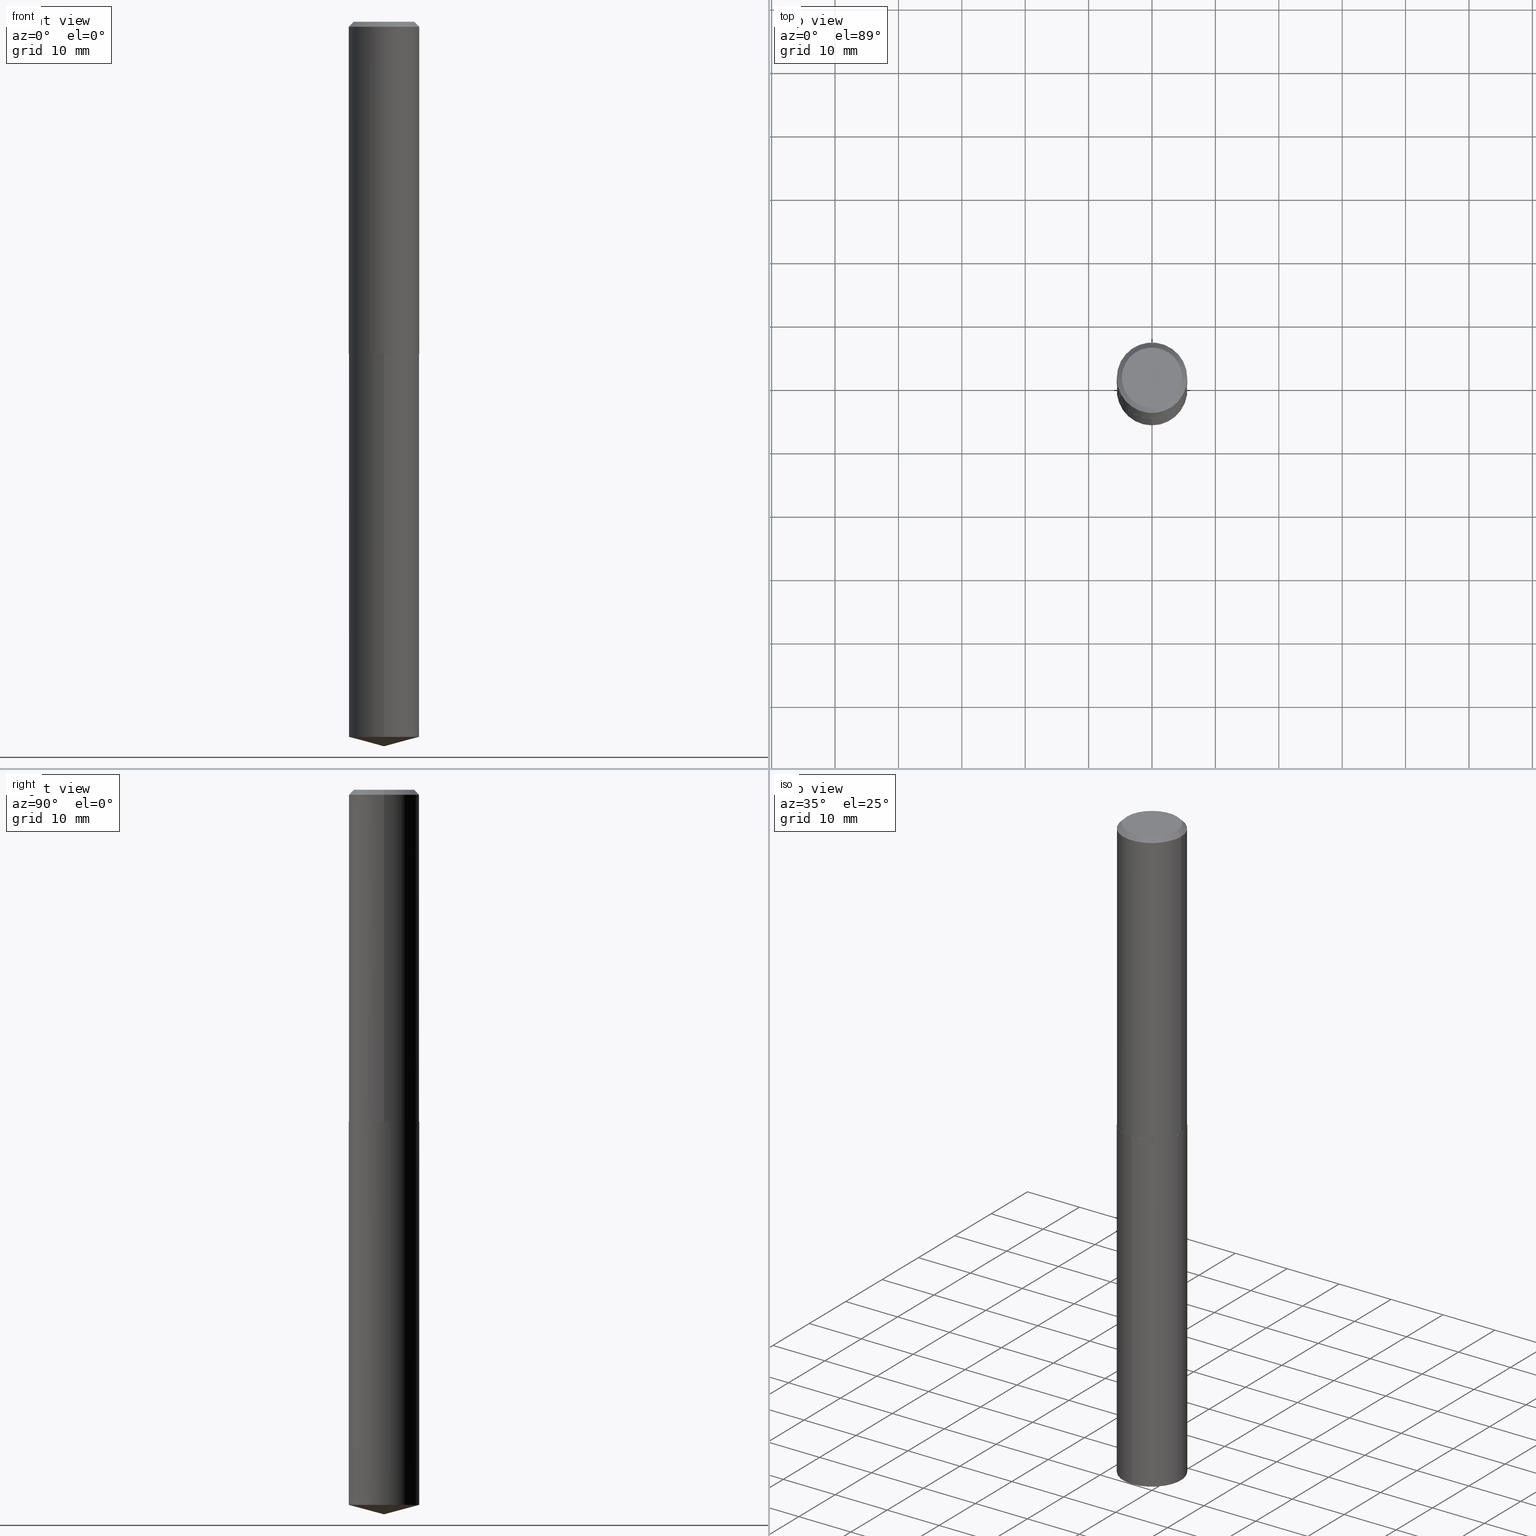
[diagram: canonical four-view strip — front | top / right | iso, engineering-drawing reading convention]
A machine part, canonical four-view strip (front | top / right | iso — engineering-drawing reading convention). The complete STEP part file that produces these views, byte-faithful:
ISO-10303-21;
HEADER;
FILE_DESCRIPTION (( 'STEP AP203' ),
    '1' );
FILE_NAME ('58094.STEP',
    '2024-04-23T01:51:55',
    ( '' ),
    ( '' ),
    'SwSTEP 2.0',
    'SolidWorks 2023',
    '' );
FILE_SCHEMA (( 'CONFIG_CONTROL_DESIGN' ));
ENDSEC;

DATA;
#1 = AXIS2_PLACEMENT_3D ( 'NONE', #376, #265, #388 ) ;
#2 = LOCAL_TIME ( 21, 51, 55.00000000000000000, #129 ) ;
#3 = ORIENTED_EDGE ( 'NONE', *, *, #111, .T. ) ;
#4 = PLANE ( 'NONE',  #88 ) ;
#5 = DIRECTION ( 'NONE',  ( -6.982962677686265133E-15, -1.000000000000000000, 3.746534391310989557E-15 ) ) ;
#6 = ORIENTED_EDGE ( 'NONE', *, *, #111, .F. ) ;
#7 = COORDINATED_UNIVERSAL_TIME_OFFSET ( 5, 0, .BEHIND. ) ;
#8 = LINE ( 'NONE', #128, #384 ) ;
#9 =( NAMED_UNIT ( * ) SI_UNIT ( $, .STERADIAN. ) SOLID_ANGLE_UNIT ( ) );
#10 = CARTESIAN_POINT ( 'NONE',  ( -2.335971725809272108E-47, 3.335148527799635725E-33, 9.552245033349344265E-19 ) ) ;
#11 = CALENDAR_DATE ( 2024, 22, 4 ) ;
#12 = CIRCLE ( 'NONE', #358, 0.2187500000000000000 ) ;
#13 = CARTESIAN_POINT ( 'NONE',  ( 0.2187500000000000833, -1.527523085743871435E-15, 1.066663669705361305E-29 ) ) ;
#14 = PERSON_AND_ORGANIZATION ( #209, #184 ) ;
#15 = CARTESIAN_POINT ( 'NONE',  ( 5.043779412756844791E-29, -7.201180261363988578E-15, -2.062500000000000000 ) ) ;
#16 = CARTESIAN_POINT ( 'NONE',  ( 1.554312234475328019E-15, 0.2187499999999927836, -2.062500000000000888 ) ) ;
#17 = DIRECTION ( 'NONE',  ( -2.445468806185136597E-29, 3.491481338843145583E-15, 1.000000000000000000 ) ) ;
#18 = CIRCLE ( 'NONE', #65, 0.1874999999999999722 ) ;
#19 = EDGE_CURVE ( 'NONE', #353, #80, #276, .T. ) ;
#20 = FACE_OUTER_BOUND ( 'NONE', #327, .T. ) ;
#21 = ADVANCED_FACE ( 'NONE', ( #121 ), #4, .F. ) ;
#22 = DIRECTION ( 'NONE',  ( 2.445468806185136597E-29, -3.491481338843145583E-15, -1.000000000000000000 ) ) ;
#23 = EDGE_CURVE ( 'NONE', #157, #36, #8, .T. ) ;
#24 = VECTOR ( 'NONE', #142, 39.37007874015748143 ) ;
#25 = DIRECTION ( 'NONE',  ( -2.438088387897960049E-29, 3.491481338843145188E-15, 1.000000000000000000 ) ) ;
#26 = EDGE_LOOP ( 'NONE', ( #337, #94, #160 ) ) ;
#27 = DIRECTION ( 'NONE',  ( -2.445468806185136597E-29, 3.491481338843145583E-15, 1.000000000000000000 ) ) ;
#28 = ORIENTED_EDGE ( 'NONE', *, *, #161, .F. ) ;
#29 = DIRECTION ( 'NONE',  ( 0.000000000000000000, 0.000000000000000000, 1.000000000000000000 ) ) ;
#30 = APPROVAL_PERSON_ORGANIZATION ( #307, #272, #342 ) ;
#31 = ADVANCED_FACE ( 'NONE', ( #87 ), #304, .T. ) ;
#32 = ORIENTED_EDGE ( 'NONE', *, *, #363, .F. ) ;
#33 = EDGE_CURVE ( 'NONE', #84, #299, #246, .T. ) ;
#34 = EDGE_LOOP ( 'NONE', ( #240, #211 ) ) ;
#35 = MANIFOLD_SOLID_BREP ( 'Body-Move/Copy2[2]', #123 ) ;
#36 = VERTEX_POINT ( 'NONE', #186 ) ;
#37 = CONICAL_SURFACE ( 'NONE', #329, 0.2187500000000000000, 0.7853981633974453924 ) ;
#38 = ORIENTED_EDGE ( 'NONE', *, *, #48, .F. ) ;
#39 = EDGE_CURVE ( 'NONE', #188, #110, #205, .T. ) ;
#40 = APPROVAL_DATE_TIME ( #164, #305 ) ;
#41 = CYLINDRICAL_SURFACE ( 'NONE', #139, 0.2187500000000000833 ) ;
#42 = SECURITY_CLASSIFICATION_LEVEL ( 'unclassified' ) ;
#43 = LINE ( 'NONE', #13, #247 ) ;
#44 = EDGE_CURVE ( 'NONE', #299, #306, #96, .T. ) ;
#45 = DIRECTION ( 'NONE',  ( -2.445468806185136597E-29, 3.491481338843145583E-15, 1.000000000000000000 ) ) ;
#46 = DIRECTION ( 'NONE',  ( -2.445413256762189214E-29, 3.491560888778482926E-15, 1.000000000000000000 ) ) ;
#47 = CARTESIAN_POINT ( 'NONE',  ( 1.100459080609884019E-28, -1.571169585601990727E-14, -4.500000000000000000 ) ) ;
#48 = EDGE_CURVE ( 'NONE', #156, #36, #171, .T. ) ;
#49 = DIRECTION ( 'NONE',  ( 1.000000000000000000, -6.982962677686265133E-15, 0.000000000000000000 ) ) ;
#50 = AXIS2_PLACEMENT_3D ( 'NONE', #352, #201, #49 ) ;
#51 = PLANE ( 'NONE',  #264 ) ;
#52 = CARTESIAN_POINT ( 'NONE',  ( -1.527523085743819961E-15, -0.2187500000000071887, -2.062499999999999556 ) ) ;
#53 = EDGE_CURVE ( 'NONE', #110, #306, #43, .T. ) ;
#54 = AXIS2_PLACEMENT_3D ( 'NONE', #66, #126, #285 ) ;
#55 = AXIS2_PLACEMENT_3D ( 'NONE', #56, #179, #291 ) ;
#56 = CARTESIAN_POINT ( 'NONE',  ( 7.642090019328598283E-31, -1.091087918388489651E-16, -0.03125000000000019429 ) ) ;
#57 = EDGE_LOOP ( 'NONE', ( #367, #202 ) ) ;
#58 = EDGE_CURVE ( 'NONE', #110, #188, #372, .T. ) ;
#59 = EDGE_LOOP ( 'NONE', ( #176, #362, #63, #154 ) ) ;
#60 = ORIENTED_EDGE ( 'NONE', *, *, #114, .T. ) ;
#61 = DIRECTION ( 'NONE',  ( -0.7071067811865454633, 2.468850131082235367E-15, -0.7071067811865495711 ) ) ;
#62 = PERSON_AND_ORGANIZATION_ROLE ( 'classification_officer' ) ;
#63 = ORIENTED_EDGE ( 'NONE', *, *, #381, .F. ) ;
#64 = CALENDAR_DATE ( 2024, 22, 4 ) ;
#65 = AXIS2_PLACEMENT_3D ( 'NONE', #10, #314, #288 ) ;
#66 = CARTESIAN_POINT ( 'NONE',  ( 5.042556678353752550E-29, -7.199434520694567863E-15, -2.062000000000000277 ) ) ;
#67 = PERSON_AND_ORGANIZATION_ROLE ( 'design_supplier' ) ;
#68 = DIRECTION ( 'NONE',  ( -6.982962677686265133E-15, -1.000000000000000000, 2.497689594207326371E-15 ) ) ;
#69 = APPROVAL_DATE_TIME ( #335, #272 ) ;
#70 = CARTESIAN_POINT ( 'NONE',  ( 5.043779412756844791E-29, -7.201180261363988578E-15, -2.062500000000000000 ) ) ;
#71 = AXIS2_PLACEMENT_3D ( 'NONE', #98, #46, #68 ) ;
#72 = CARTESIAN_POINT ( 'NONE',  ( 1.554312234475328217E-15, 0.2187499999999845957, -4.441386114155693399 ) ) ;
#73 = LINE ( 'NONE', #170, #82 ) ;
#74 = LINE ( 'NONE', #344, #345 ) ;
#75 = LINE ( 'NONE', #81, #24 ) ;
#76 = CC_DESIGN_APPROVAL ( #143, ( #231 ) ) ;
#77 = CYLINDRICAL_SURFACE ( 'NONE', #300, 0.2187500000000000000 ) ;
#78 = ORIENTED_EDGE ( 'NONE', *, *, #311, .T. ) ;
#79 = CARTESIAN_POINT ( 'NONE',  ( 0.2187500000000000000, -1.636631877582719746E-15, -0.03125000000000019429 ) ) ;
#80 = VERTEX_POINT ( 'NONE', #16 ) ;
#81 = CARTESIAN_POINT ( 'NONE',  ( 0.2187500000000000000, -1.609842728851371433E-15, -0.03125000000000019429 ) ) ;
#82 = VECTOR ( 'NONE', #316, 39.37007874015748143 ) ;
#83 = FACE_OUTER_BOUND ( 'NONE', #122, .T. ) ;
#84 = VERTEX_POINT ( 'NONE', #137 ) ;
#85 = APPLICATION_PROTOCOL_DEFINITION ( 'international standard', 'config_control_design', 1994, #262 ) ;
#86 = ORIENTED_EDGE ( 'NONE', *, *, #387, .T. ) ;
#87 = FACE_OUTER_BOUND ( 'NONE', #235, .T. ) ;
#88 = AXIS2_PLACEMENT_3D ( 'NONE', #215, #280, #244 ) ;
#89 = LOCAL_TIME ( 21, 51, 55.00000000000000000, #187 ) ;
#90 = ADVANCED_BREP_SHAPE_REPRESENTATION ( '58094', ( #294, #35, #301 ), #351 ) ;
#91 = ORIENTED_EDGE ( 'NONE', *, *, #381, .T. ) ;
#92 = EDGE_LOOP ( 'NONE', ( #214, #32, #190, #273 ) ) ;
#93 = PERSON_AND_ORGANIZATION ( #209, #184 ) ;
#94 = ORIENTED_EDGE ( 'NONE', *, *, #199, .T. ) ;
#95 = DATE_AND_TIME ( #11, #167 ) ;
#96 = CIRCLE ( 'NONE', #109, 0.2187500000000000000 ) ;
#97 = CIRCLE ( 'NONE', #55, 0.2187500000000000000 ) ;
#98 = CARTESIAN_POINT ( 'NONE',  ( 1.086113905264066496E-28, -1.550720597640823083E-14, -4.441386114155692511 ) ) ;
#99 = EDGE_CURVE ( 'NONE', #364, #271, #124, .T. ) ;
#100 = APPROVAL_STATUS ( 'not_yet_approved' ) ;
#101 = CARTESIAN_POINT ( 'NONE',  ( 5.043779412756844791E-29, -7.201180261363988578E-15, -2.062500000000000000 ) ) ;
#102 = DIRECTION ( 'NONE',  ( -6.982962677686265133E-15, -1.000000000000000000, 2.497689594207326371E-15 ) ) ;
#103 = AXIS2_PLACEMENT_3D ( 'NONE', #224, #375, #102 ) ;
#104 = FACE_OUTER_BOUND ( 'NONE', #92, .T. ) ;
#105 = UNCERTAINTY_MEASURE_WITH_UNIT (LENGTH_MEASURE( 1.000000000000000082E-05 ), #349, 'distance_accuracy_value', 'NONE');
#106 = DIRECTION ( 'NONE',  ( 2.445468806185136597E-29, -3.491481338843145583E-15, -1.000000000000000000 ) ) ;
#107 = LENGTH_MEASURE_WITH_UNIT ( LENGTH_MEASURE( 0.02539999999999999897 ), #172 );
#108 = DIRECTION ( 'NONE',  ( 6.982962677686265922E-15, 1.000000000000000000, -3.491560888778483320E-15 ) ) ;
#109 = AXIS2_PLACEMENT_3D ( 'NONE', #348, #252, #287 ) ;
#110 = VERTEX_POINT ( 'NONE', #220 ) ;
#111 = EDGE_CURVE ( 'NONE', #364, #188, #74, .T. ) ;
#112 = PLANE ( 'NONE',  #166 ) ;
#113 = CARTESIAN_POINT ( 'NONE',  ( -2.335971725809272108E-47, 3.335148527799635725E-33, 9.552245033349344265E-19 ) ) ;
#114 = EDGE_CURVE ( 'NONE', #271, #110, #340, .T. ) ;
#115 = FACE_OUTER_BOUND ( 'NONE', #180, .T. ) ;
#116 = ORIENTED_EDGE ( 'NONE', *, *, #39, .T. ) ;
#117 = CIRCLE ( 'NONE', #336, 0.2182500000000007490 ) ;
#118 = DATE_AND_TIME ( #64, #239 ) ;
#119 = ORIENTED_EDGE ( 'NONE', *, *, #228, .F. ) ;
#120 = APPLICATION_CONTEXT ( 'configuration controlled 3d designs of mechanical parts and assemblies' ) ;
#121 = FACE_OUTER_BOUND ( 'NONE', #328, .T. ) ;
#122 = EDGE_LOOP ( 'NONE', ( #119, #178, #91, #357 ) ) ;
#123 = CLOSED_SHELL ( 'NONE', ( #370, #223, #319, #360, #303, #275, #189, #21 ) ) ;
#124 = CIRCLE ( 'NONE', #158, 0.2182500000000007490 ) ;
#125 = APPROVAL_PERSON_ORGANIZATION ( #131, #305, #210 ) ;
#126 = DIRECTION ( 'NONE',  ( -2.445468806185136597E-29, 3.491481338843145583E-15, 1.000000000000000000 ) ) ;
#127 = COORDINATED_UNIVERSAL_TIME_OFFSET ( 5, 0, .BEHIND. ) ;
#128 = CARTESIAN_POINT ( 'NONE',  ( 1.100435965542985090E-28, -1.571202399950317396E-14, -4.500000000000000000 ) ) ;
#129 = COORDINATED_UNIVERSAL_TIME_OFFSET ( 5, 0, .BEHIND. ) ;
#130 = DIRECTION ( 'NONE',  ( -2.445413256762189214E-29, 3.491560888778482926E-15, 1.000000000000000000 ) ) ;
#131 = PERSON_AND_ORGANIZATION ( #209, #184 ) ;
#132 = AXIS2_PLACEMENT_3D ( 'NONE', #332, #334, #185 ) ;
#133 = SECURITY_CLASSIFICATION ( '', '', #42 ) ;
#134 = DIRECTION ( 'NONE',  ( -6.982962677686265133E-15, -1.000000000000000000, 3.746534391310989557E-15 ) ) ;
#135 = DATE_AND_TIME ( #312, #89 ) ;
#136 = FACE_OUTER_BOUND ( 'NONE', #323, .T. ) ;
#137 = CARTESIAN_POINT ( 'NONE',  ( -0.1874999999999999722, 1.363859897985598178E-15, 9.552245033255873107E-19 ) ) ;
#138 = CC_DESIGN_PERSON_AND_ORGANIZATION_ASSIGNMENT ( #281, #369, ( #236 ) ) ;
#139 = AXIS2_PLACEMENT_3D ( 'NONE', #282, #313, #165 ) ;
#140 = DIRECTION ( 'NONE',  ( 1.000000000000000000, -6.982962677686265133E-15, 0.000000000000000000 ) ) ;
#141 = FACE_OUTER_BOUND ( 'NONE', #57, .T. ) ;
#142 = DIRECTION ( 'NONE',  ( 0.7071067811865454633, -7.319954787623248157E-15, -0.7071067811865495711 ) ) ;
#143 = APPROVAL ( #374, 'UNSPECIFIED' ) ;
#144 = AXIS2_PLACEMENT_3D ( 'NONE', #232, #324, #322 ) ;
#145 = DIRECTION ( 'NONE',  ( 1.000000000000000000, -6.982962677686265922E-15, 4.876176775795935793E-29 ) ) ;
#146 = VERTEX_POINT ( 'NONE', #261 ) ;
#147 = LINE ( 'NONE', #268, #338 ) ;
#148 = ORIENTED_EDGE ( 'NONE', *, *, #23, .T. ) ;
#149 = APPROVAL_STATUS ( 'not_yet_approved' ) ;
#150 = ORIENTED_EDGE ( 'NONE', *, *, #242, .T. ) ;
#151 = VECTOR ( 'NONE', #226, 39.37007874015748143 ) ;
#152 = APPROVAL_PERSON_ORGANIZATION ( #219, #143, #162 ) ;
#153 = DIMENSIONAL_EXPONENTS ( 1.000000000000000000, 0.000000000000000000, 0.000000000000000000, 0.000000000000000000, 0.000000000000000000, 0.000000000000000000, 0.000000000000000000 ) ;
#154 = ORIENTED_EDGE ( 'NONE', *, *, #53, .F. ) ;
#155 = CC_DESIGN_PERSON_AND_ORGANIZATION_ASSIGNMENT ( #14, #159, ( #231 ) ) ;
#156 = VERTEX_POINT ( 'NONE', #72 ) ;
#157 = VERTEX_POINT ( 'NONE', #169 ) ;
#158 = AXIS2_PLACEMENT_3D ( 'NONE', #15, #222, #373 ) ;
#159 = PERSON_AND_ORGANIZATION_ROLE ( 'creator' ) ;
#160 = ORIENTED_EDGE ( 'NONE', *, *, #173, .F. ) ;
#161 = EDGE_CURVE ( 'NONE', #80, #353, #12, .T. ) ;
#162 = APPROVAL_ROLE ( '' ) ;
#163 = CARTESIAN_POINT ( 'NONE',  ( 7.642090019328598283E-31, -1.091087918388489651E-16, -0.03125000000000019429 ) ) ;
#164 = DATE_AND_TIME ( #333, #2 ) ;
#165 = DIRECTION ( 'NONE',  ( 1.000000000000000000, -6.982962677686266711E-15, 4.876176775795935793E-29 ) ) ;
#166 = AXIS2_PLACEMENT_3D ( 'NONE', #263, #204, #108 ) ;
#167 = LOCAL_TIME ( 21, 51, 55.00000000000000000, #127 ) ;
#168 = DIRECTION ( 'NONE',  ( 1.000000000000000000, -6.982962677686267499E-15, 0.000000000000000000 ) ) ;
#169 = CARTESIAN_POINT ( 'NONE',  ( 1.100435965542985090E-28, -1.571202399950317396E-14, -4.500000000000000000 ) ) ;
#170 = CARTESIAN_POINT ( 'NONE',  ( -0.2187500000000000833, 1.554312234475219748E-15, -1.076017050993261043E-29 ) ) ;
#171 = CIRCLE ( 'NONE', #103, 0.2187500000000000000 ) ;
#172 =( LENGTH_UNIT ( ) NAMED_UNIT ( * ) SI_UNIT ( $, .METRE. ) );
#173 = EDGE_CURVE ( 'NONE', #36, #156, #379, .T. ) ;
#174 =( NAMED_UNIT ( * ) PLANE_ANGLE_UNIT ( ) SI_UNIT ( $, .RADIAN. ) );
#175 = CARTESIAN_POINT ( 'NONE',  ( 5.043779412756844791E-29, -7.201180261363988578E-15, -2.062500000000000000 ) ) ;
#176 = ORIENTED_EDGE ( 'NONE', *, *, #58, .T. ) ;
#177 = LINE ( 'NONE', #229, #230 ) ;
#178 = ORIENTED_EDGE ( 'NONE', *, *, #365, .T. ) ;
#179 = DIRECTION ( 'NONE',  ( -2.445468806185136597E-29, 3.491481338843145583E-15, 1.000000000000000000 ) ) ;
#180 = EDGE_LOOP ( 'NONE', ( #308, #148, #38 ) ) ;
#181 = ADVANCED_FACE ( 'NONE', ( #317 ), #253, .T. ) ;
#182 = ORIENTED_EDGE ( 'NONE', *, *, #311, .F. ) ;
#183 = CONICAL_SURFACE ( 'NONE', #50, 0.2187500000000002220, 0.7853981633970383847 ) ;
#184 = ORGANIZATION ( 'UNSPECIFIED', 'UNSPECIFIED', '' ) ;
#185 = DIRECTION ( 'NONE',  ( -6.982962677686265133E-15, -1.000000000000000000, 3.746534391310989557E-15 ) ) ;
#186 = CARTESIAN_POINT ( 'NONE',  ( -1.527523085743762572E-15, -0.2187500000000155986, -4.441386114155691622 ) ) ;
#187 = COORDINATED_UNIVERSAL_TIME_OFFSET ( 5, 0, .BEHIND. ) ;
#188 = VERTEX_POINT ( 'NONE', #255 ) ;
#189 = ADVANCED_FACE ( 'NONE', ( #104 ), #37, .T. ) ;
#190 = ORIENTED_EDGE ( 'NONE', *, *, #33, .T. ) ;
#191 = DATE_TIME_ROLE ( 'creation_date' ) ;
#192 = DIRECTION ( 'NONE',  ( -6.982962677686265922E-15, -1.000000000000000000, 3.510303681827608484E-15 ) ) ;
#193 = SHAPE_DEFINITION_REPRESENTATION ( #321, #90 ) ;
#194 = DIRECTION ( 'NONE',  ( -1.000000000000000000, 6.982962677686266711E-15, 0.000000000000000000 ) ) ;
#195 = AXIS2_PLACEMENT_3D ( 'NONE', #113, #27, #237 ) ;
#196 = DIRECTION ( 'NONE',  ( -2.445468806185136877E-29, 3.491481338843145188E-15, 1.000000000000000000 ) ) ;
#197 = DIRECTION ( 'NONE',  ( -0.7071067811862576935, 7.493145998869306553E-15, 0.7071067811868373409 ) ) ;
#198 = FACE_OUTER_BOUND ( 'NONE', #59, .T. ) ;
#199 = EDGE_CURVE ( 'NONE', #157, #156, #347, .T. ) ;
#200 = CC_DESIGN_APPROVAL ( #305, ( #236 ) ) ;
#201 = DIRECTION ( 'NONE',  ( -2.445468806185136597E-29, 3.491481338843145583E-15, 1.000000000000000000 ) ) ;
#202 = ORIENTED_EDGE ( 'NONE', *, *, #99, .F. ) ;
#203 = EDGE_CURVE ( 'NONE', #188, #299, #73, .T. ) ;
#204 = DIRECTION ( 'NONE',  ( 2.445413256762188653E-29, -3.491560888778483320E-15, -1.000000000000000000 ) ) ;
#205 = CIRCLE ( 'NONE', #54, 0.2187500000000002220 ) ;
#206 = DIRECTION ( 'NONE',  ( -1.000000000000000000, 6.982962677686266711E-15, 0.000000000000000000 ) ) ;
#207 = PRODUCT_RELATED_PRODUCT_CATEGORY ( 'detail', '', ( #295 ) ) ;
#208 = ORIENTED_EDGE ( 'NONE', *, *, #39, .F. ) ;
#209 = PERSON ( 'UNSPECIFIED', 'UNSPECIFIED', 'UNSPECIFIED', ('UNSPECIFIED'), ('UNSPECIFIED'), ('UNSPECIFIED') ) ;
#210 = APPROVAL_ROLE ( '' ) ;
#211 = ORIENTED_EDGE ( 'NONE', *, *, #161, .T. ) ;
#212 = ORIENTED_EDGE ( 'NONE', *, *, #44, .F. ) ;
#213 = CONICAL_SURFACE ( 'NONE', #218, 0.2187500000000002220, 0.7853981633970383847 ) ;
#214 = ORIENTED_EDGE ( 'NONE', *, *, #365, .F. ) ;
#215 = CARTESIAN_POINT ( 'NONE',  ( -1.167985862904636054E-47, 1.667574263899817862E-33, 4.776122516674672132E-19 ) ) ;
#216 = CALENDAR_DATE ( 2024, 22, 4 ) ;
#217 = CARTESIAN_POINT ( 'NONE',  ( -0.2187500000000000000, 1.418414293905021742E-15, -0.03125000000000019429 ) ) ;
#218 = AXIS2_PLACEMENT_3D ( 'NONE', #234, #354, #320 ) ;
#219 = PERSON_AND_ORGANIZATION ( #209, #184 ) ;
#220 = CARTESIAN_POINT ( 'NONE',  ( 0.2187500000000002220, -8.726957606438439495E-15, -2.062000000000000277 ) ) ;
#221 = PERSON_AND_ORGANIZATION ( #209, #184 ) ;
#222 = DIRECTION ( 'NONE',  ( -2.445468806185136597E-29, 3.491481338843145583E-15, 1.000000000000000000 ) ) ;
#223 = ADVANCED_FACE ( 'NONE', ( #198 ), #41, .T. ) ;
#224 = CARTESIAN_POINT ( 'NONE',  ( 1.086113905264066496E-28, -1.550720597640823083E-14, -4.441386114155692511 ) ) ;
#225 = AXIS2_PLACEMENT_3D ( 'NONE', #380, #130, #192 ) ;
#226 = DIRECTION ( 'NONE',  ( 0.7071067811862576935, -2.468850131079221129E-15, 0.7071067811868373409 ) ) ;
#227 = CARTESIAN_POINT ( 'NONE',  ( 5.042556678353752550E-29, -7.199434520694567863E-15, -2.062000000000000277 ) ) ;
#228 = EDGE_CURVE ( 'NONE', #146, #84, #18, .T. ) ;
#229 = CARTESIAN_POINT ( 'NONE',  ( 1.554312234475269249E-15, 0.2187499999999927836, -2.062500000000000888 ) ) ;
#230 = VECTOR ( 'NONE', #386, 39.37007874015748143 ) ;
#231 = PRODUCT_DEFINITION_FORMATION_WITH_SPECIFIED_SOURCE ( 'ANY', '', #295, .NOT_KNOWN. ) ;
#232 = CARTESIAN_POINT ( 'NONE',  ( -8.527163824483765556E-28, 1.217511671895015645E-13, 34.87007874015748143 ) ) ;
#233 = ORIENTED_EDGE ( 'NONE', *, *, #114, .F. ) ;
#234 = CARTESIAN_POINT ( 'NONE',  ( 5.042556678353752550E-29, -7.199434520694567863E-15, -2.062000000000000277 ) ) ;
#235 = EDGE_LOOP ( 'NONE', ( #182, #243, #86, #28 ) ) ;
#236 = PRODUCT_DEFINITION ( 'UNKNOWN', '', #231, #283 ) ;
#237 = DIRECTION ( 'NONE',  ( 1.000000000000000000, -6.982962677686266711E-15, 4.876179125272552877E-29 ) ) ;
#238 = AXIS2_PLACEMENT_3D ( 'NONE', #274, #371, #5 ) ;
#239 = LOCAL_TIME ( 21, 51, 55.00000000000000000, #249 ) ;
#240 = ORIENTED_EDGE ( 'NONE', *, *, #19, .T. ) ;
#241 = DIRECTION ( 'NONE',  ( 1.000000000000000000, 0.000000000000000000, 0.000000000000000000 ) ) ;
#242 = EDGE_CURVE ( 'NONE', #271, #364, #117, .T. ) ;
#243 = ORIENTED_EDGE ( 'NONE', *, *, #48, .T. ) ;
#244 = DIRECTION ( 'NONE',  ( -1.000000000000000000, 6.982962677686265922E-15, -4.876176775795935793E-29 ) ) ;
#245 = VECTOR ( 'NONE', #61, 39.37007874015748143 ) ;
#246 = LINE ( 'NONE', #217, #245 ) ;
#247 = VECTOR ( 'NONE', #196, 39.37007874015748143 ) ;
#248 = DIRECTION ( 'NONE',  ( -6.745023994389841499E-15, -0.9659258262890679791, 0.2588190451025219607 ) ) ;
#249 = COORDINATED_UNIVERSAL_TIME_OFFSET ( 5, 0, .BEHIND. ) ;
#250 = ORIENTED_EDGE ( 'NONE', *, *, #58, .F. ) ;
#251 = CARTESIAN_POINT ( 'NONE',  ( 0.000000000000000000, 0.000000000000000000, 0.000000000000000000 ) ) ;
#252 = DIRECTION ( 'NONE',  ( -2.445468806185136597E-29, 3.491481338843145583E-15, 1.000000000000000000 ) ) ;
#253 = CONICAL_SURFACE ( 'NONE', #225, 146.9311341562563484, 1.308996938995749426 ) ;
#254 = DATE_TIME_ROLE ( 'classification_date' ) ;
#255 = CARTESIAN_POINT ( 'NONE',  ( -0.2187500000000002220, -5.645122286219346340E-15, -2.062000000000000277 ) ) ;
#256 = CC_DESIGN_PERSON_AND_ORGANIZATION_ASSIGNMENT ( #270, #67, ( #231 ) ) ;
#257 = MECHANICAL_CONTEXT ( 'NONE', #262, 'mechanical' ) ;
#258 = CYLINDRICAL_SURFACE ( 'NONE', #1, 0.2187500000000000833 ) ;
#259 = CARTESIAN_POINT ( 'NONE',  ( 0.2187500000000002220, -8.726957606438439495E-15, -2.062000000000000277 ) ) ;
#260 = VECTOR ( 'NONE', #343, 39.37007874015748143 ) ;
#261 = CARTESIAN_POINT ( 'NONE',  ( 0.1874999999999999722, -1.448093051716766899E-15, 9.552245033445756318E-19 ) ) ;
#262 = APPLICATION_CONTEXT ( 'configuration controlled 3d designs of mechanical parts and assemblies' ) ;
#263 = CARTESIAN_POINT ( 'NONE',  ( 5.043779412756844791E-29, -7.201180261363988578E-15, -2.062500000000000000 ) ) ;
#264 = AXIS2_PLACEMENT_3D ( 'NONE', #175, #25, #145 ) ;
#265 = DIRECTION ( 'NONE',  ( -2.445468806185136597E-29, 3.491481338843145583E-15, 1.000000000000000000 ) ) ;
#266 = CC_DESIGN_DATE_AND_TIME_ASSIGNMENT ( #135, #254, ( #133 ) ) ;
#267 = CARTESIAN_POINT ( 'NONE',  ( 5.043779412756844791E-29, -7.201180261363988578E-15, -2.062500000000000000 ) ) ;
#268 = CARTESIAN_POINT ( 'NONE',  ( -1.527523085743819961E-15, -0.2187500000000071887, -2.062499999999999556 ) ) ;
#269 = ORIENTED_EDGE ( 'NONE', *, *, #53, .T. ) ;
#270 = PERSON_AND_ORGANIZATION ( #209, #184 ) ;
#271 = VERTEX_POINT ( 'NONE', #286 ) ;
#272 = APPROVAL ( #100, 'UNSPECIFIED' ) ;
#273 = ORIENTED_EDGE ( 'NONE', *, *, #44, .T. ) ;
#274 = CARTESIAN_POINT ( 'NONE',  ( 5.043779412756844791E-29, -7.201180261363988578E-15, -2.062500000000000000 ) ) ;
#275 = ADVANCED_FACE ( 'NONE', ( #136 ), #258, .T. ) ;
#276 = CIRCLE ( 'NONE', #132, 0.2187500000000000000 ) ;
#277 = ORIENTED_EDGE ( 'NONE', *, *, #363, .T. ) ;
#278 = LOCAL_TIME ( 21, 51, 55.00000000000000000, #7 ) ;
#279 = CC_DESIGN_PERSON_AND_ORGANIZATION_ASSIGNMENT ( #221, #284, ( #295 ) ) ;
#280 = DIRECTION ( 'NONE',  ( 2.438088387897960049E-29, -3.491481338843145188E-15, -1.000000000000000000 ) ) ;
#281 = PERSON_AND_ORGANIZATION ( #209, #184 ) ;
#282 = CARTESIAN_POINT ( 'NONE',  ( 0.000000000000000000, 0.000000000000000000, 0.000000000000000000 ) ) ;
#283 = DESIGN_CONTEXT ( 'detailed design', #120, 'design' ) ;
#284 = PERSON_AND_ORGANIZATION_ROLE ( 'design_owner' ) ;
#285 = DIRECTION ( 'NONE',  ( 1.000000000000000000, -6.982962677686265133E-15, 0.000000000000000000 ) ) ;
#286 = CARTESIAN_POINT ( 'NONE',  ( 0.2182500000000007490, -8.725211865769021935E-15, -2.062500000000000000 ) ) ;
#287 = DIRECTION ( 'NONE',  ( 1.000000000000000000, -6.982962677686266711E-15, 0.000000000000000000 ) ) ;
#288 = DIRECTION ( 'NONE',  ( 1.000000000000000000, -6.982962677686266711E-15, 4.876179125272552877E-29 ) ) ;
#289 = AXIS2_PLACEMENT_3D ( 'NONE', #359, #22, #206 ) ;
#290 = FACE_OUTER_BOUND ( 'NONE', #34, .T. ) ;
#291 = DIRECTION ( 'NONE',  ( 1.000000000000000000, -6.982962677686266711E-15, 0.000000000000000000 ) ) ;
#292 = CARTESIAN_POINT ( 'NONE',  ( -0.2182500000000007490, -5.647771513393455963E-15, -2.062500000000000000 ) ) ;
#293 = ADVANCED_FACE ( 'NONE', ( #298 ), #77, .T. ) ;
#294 = MANIFOLD_SOLID_BREP ( 'Body-Move/Copy2[1]', #325 ) ;
#295 = PRODUCT ( '58094', '58094', '', ( #257 ) ) ;
#296 = CONICAL_SURFACE ( 'NONE', #289, 0.2187500000000000000, 0.7853981633974453924 ) ;
#297 = DIRECTION ( 'NONE',  ( -6.982962677686265133E-15, -1.000000000000000000, 3.746534391310989557E-15 ) ) ;
#298 = FACE_OUTER_BOUND ( 'NONE', #383, .T. ) ;
#299 = VERTEX_POINT ( 'NONE', #356 ) ;
#300 = AXIS2_PLACEMENT_3D ( 'NONE', #267, #382, #297 ) ;
#301 = AXIS2_PLACEMENT_3D ( 'NONE', #251, #29, #241 ) ;
#302 = ORIENTED_EDGE ( 'NONE', *, *, #228, .T. ) ;
#303 = ADVANCED_FACE ( 'NONE', ( #326 ), #183, .T. ) ;
#304 = CYLINDRICAL_SURFACE ( 'NONE', #238, 0.2187500000000000000 ) ;
#305 = APPROVAL ( #149, 'UNSPECIFIED' ) ;
#306 = VERTEX_POINT ( 'NONE', #79 ) ;
#307 = PERSON_AND_ORGANIZATION ( #209, #184 ) ;
#308 = ORIENTED_EDGE ( 'NONE', *, *, #199, .F. ) ;
#309 = APPLICATION_PROTOCOL_DEFINITION ( 'international standard', 'config_control_design', 1994, #120 ) ;
#310 = EDGE_LOOP ( 'NONE', ( #6, #361, #60, #208 ) ) ;
#311 = EDGE_CURVE ( 'NONE', #156, #80, #177, .T. ) ;
#312 = CALENDAR_DATE ( 2024, 22, 4 ) ;
#313 = DIRECTION ( 'NONE',  ( -2.445468806185136597E-29, 3.491481338843145583E-15, 1.000000000000000000 ) ) ;
#314 = DIRECTION ( 'NONE',  ( -2.445468806185136597E-29, 3.491481338843145583E-15, 1.000000000000000000 ) ) ;
#315 = CONICAL_SURFACE ( 'NONE', #144, 146.9311341562563484, 1.308996938995749426 ) ;
#316 = DIRECTION ( 'NONE',  ( -2.445468806185136877E-29, 3.491481338843145188E-15, 1.000000000000000000 ) ) ;
#317 = FACE_OUTER_BOUND ( 'NONE', #26, .T. ) ;
#318 = AXIS2_PLACEMENT_3D ( 'NONE', #227, #17, #140 ) ;
#319 = ADVANCED_FACE ( 'NONE', ( #20 ), #213, .T. ) ;
#320 = DIRECTION ( 'NONE',  ( 1.000000000000000000, -6.982962677686265133E-15, 0.000000000000000000 ) ) ;
#321 = PRODUCT_DEFINITION_SHAPE ( 'NONE', 'NONE',  #236 ) ;
#322 = DIRECTION ( 'NONE',  ( -6.982962677686265922E-15, -1.000000000000000000, 3.510303681827608484E-15 ) ) ;
#323 = EDGE_LOOP ( 'NONE', ( #368, #116, #269, #212 ) ) ;
#324 = DIRECTION ( 'NONE',  ( -2.445413256762189214E-29, 3.491560888778482926E-15, 1.000000000000000000 ) ) ;
#325 = CLOSED_SHELL ( 'NONE', ( #293, #181, #350, #31, #331 ) ) ;
#326 = FACE_OUTER_BOUND ( 'NONE', #310, .T. ) ;
#327 = EDGE_LOOP ( 'NONE', ( #150, #3, #250, #233 ) ) ;
#328 = EDGE_LOOP ( 'NONE', ( #277, #302 ) ) ;
#329 = AXIS2_PLACEMENT_3D ( 'NONE', #163, #106, #194 ) ;
#330 = ORIENTED_EDGE ( 'NONE', *, *, #19, .F. ) ;
#331 = ADVANCED_FACE ( 'NONE', ( #290 ), #112, .F. ) ;
#332 = CARTESIAN_POINT ( 'NONE',  ( 5.043779412756844791E-29, -7.201180261363988578E-15, -2.062500000000000000 ) ) ;
#333 = CALENDAR_DATE ( 2024, 22, 4 ) ;
#334 = DIRECTION ( 'NONE',  ( -2.445413256762189214E-29, 3.491560888778482926E-15, 1.000000000000000000 ) ) ;
#335 = DATE_AND_TIME ( #216, #278 ) ;
#336 = AXIS2_PLACEMENT_3D ( 'NONE', #70, #45, #168 ) ;
#337 = ORIENTED_EDGE ( 'NONE', *, *, #23, .F. ) ;
#338 = VECTOR ( 'NONE', #389, 39.37007874015748143 ) ;
#339 = APPROVAL_DATE_TIME ( #118, #143 ) ;
#340 = LINE ( 'NONE', #259, #151 ) ;
#341 = CC_DESIGN_DATE_AND_TIME_ASSIGNMENT ( #95, #191, ( #236 ) ) ;
#342 = APPROVAL_ROLE ( '' ) ;
#343 = DIRECTION ( 'NONE',  ( 6.863315791527695837E-15, 0.9659258262890698665, 0.2588190451025151884 ) ) ;
#344 = CARTESIAN_POINT ( 'NONE',  ( -0.2187500000000002220, -5.645122286219346340E-15, -2.062000000000000277 ) ) ;
#345 = VECTOR ( 'NONE', #197, 39.37007874015748143 ) ;
#346 = CC_DESIGN_APPROVAL ( #272, ( #133 ) ) ;
#347 = LINE ( 'NONE', #47, #260 ) ;
#348 = CARTESIAN_POINT ( 'NONE',  ( 7.642090019328598283E-31, -1.091087918388489651E-16, -0.03125000000000019429 ) ) ;
#349 =( CONVERSION_BASED_UNIT ( 'INCH', #107 ) LENGTH_UNIT ( ) NAMED_UNIT ( #153 ) );
#350 = ADVANCED_FACE ( 'NONE', ( #115 ), #315, .T. ) ;
#351 =( GEOMETRIC_REPRESENTATION_CONTEXT ( 3 ) GLOBAL_UNCERTAINTY_ASSIGNED_CONTEXT ( ( #105 ) ) GLOBAL_UNIT_ASSIGNED_CONTEXT ( ( #349, #174, #9 ) ) REPRESENTATION_CONTEXT ( 'NONE', 'WORKASPACE' ) );
#352 = CARTESIAN_POINT ( 'NONE',  ( 5.042556678353752550E-29, -7.199434520694567863E-15, -2.062000000000000277 ) ) ;
#353 = VERTEX_POINT ( 'NONE', #52 ) ;
#354 = DIRECTION ( 'NONE',  ( -2.445468806185136597E-29, 3.491481338843145583E-15, 1.000000000000000000 ) ) ;
#355 = ORIENTED_EDGE ( 'NONE', *, *, #173, .T. ) ;
#356 = CARTESIAN_POINT ( 'NONE',  ( -0.2187500000000000000, -2.099959421791488142E-15, -0.03125000000000019429 ) ) ;
#357 = ORIENTED_EDGE ( 'NONE', *, *, #33, .F. ) ;
#358 = AXIS2_PLACEMENT_3D ( 'NONE', #101, #378, #134 ) ;
#359 = CARTESIAN_POINT ( 'NONE',  ( 7.642090019328598283E-31, -1.091087918388489651E-16, -0.03125000000000019429 ) ) ;
#360 = ADVANCED_FACE ( 'NONE', ( #141 ), #51, .F. ) ;
#361 = ORIENTED_EDGE ( 'NONE', *, *, #99, .T. ) ;
#362 = ORIENTED_EDGE ( 'NONE', *, *, #203, .T. ) ;
#363 = EDGE_CURVE ( 'NONE', #84, #146, #366, .T. ) ;
#364 = VERTEX_POINT ( 'NONE', #292 ) ;
#365 = EDGE_CURVE ( 'NONE', #146, #306, #75, .T. ) ;
#366 = CIRCLE ( 'NONE', #195, 0.1874999999999999722 ) ;
#367 = ORIENTED_EDGE ( 'NONE', *, *, #242, .F. ) ;
#368 = ORIENTED_EDGE ( 'NONE', *, *, #203, .F. ) ;
#369 = PERSON_AND_ORGANIZATION_ROLE ( 'creator' ) ;
#370 = ADVANCED_FACE ( 'NONE', ( #83 ), #296, .T. ) ;
#371 = DIRECTION ( 'NONE',  ( -2.445413256762189214E-29, 3.491560888778482926E-15, 1.000000000000000000 ) ) ;
#372 = CIRCLE ( 'NONE', #318, 0.2187500000000002220 ) ;
#373 = DIRECTION ( 'NONE',  ( 1.000000000000000000, -6.982962677686267499E-15, 0.000000000000000000 ) ) ;
#374 = APPROVAL_STATUS ( 'not_yet_approved' ) ;
#375 = DIRECTION ( 'NONE',  ( -2.445413256762189214E-29, 3.491560888778482926E-15, 1.000000000000000000 ) ) ;
#376 = CARTESIAN_POINT ( 'NONE',  ( 0.000000000000000000, 0.000000000000000000, 0.000000000000000000 ) ) ;
#377 = CC_DESIGN_PERSON_AND_ORGANIZATION_ASSIGNMENT ( #93, #62, ( #133 ) ) ;
#378 = DIRECTION ( 'NONE',  ( -2.445413256762189214E-29, 3.491560888778482926E-15, 1.000000000000000000 ) ) ;
#379 = CIRCLE ( 'NONE', #71, 0.2187500000000000000 ) ;
#380 = CARTESIAN_POINT ( 'NONE',  ( -8.527163824483765556E-28, 1.217511671895015645E-13, 34.87007874015748143 ) ) ;
#381 = EDGE_CURVE ( 'NONE', #306, #299, #97, .T. ) ;
#382 = DIRECTION ( 'NONE',  ( -2.445413256762189214E-29, 3.491560888778482926E-15, 1.000000000000000000 ) ) ;
#383 = EDGE_LOOP ( 'NONE', ( #355, #78, #330, #390 ) ) ;
#384 = VECTOR ( 'NONE', #248, 39.37007874015748143 ) ;
#385 = CC_DESIGN_SECURITY_CLASSIFICATION ( #133, ( #231 ) ) ;
#386 = DIRECTION ( 'NONE',  ( -2.445413256762189214E-29, 3.491560888778483320E-15, 1.000000000000000000 ) ) ;
#387 = EDGE_CURVE ( 'NONE', #36, #353, #147, .T. ) ;
#388 = DIRECTION ( 'NONE',  ( 1.000000000000000000, -6.982962677686266711E-15, 4.876176775795935793E-29 ) ) ;
#389 = DIRECTION ( 'NONE',  ( -2.445413256762189214E-29, 3.491560888778483320E-15, 1.000000000000000000 ) ) ;
#390 = ORIENTED_EDGE ( 'NONE', *, *, #387, .F. ) ;
ENDSEC;
END-ISO-10303-21;
